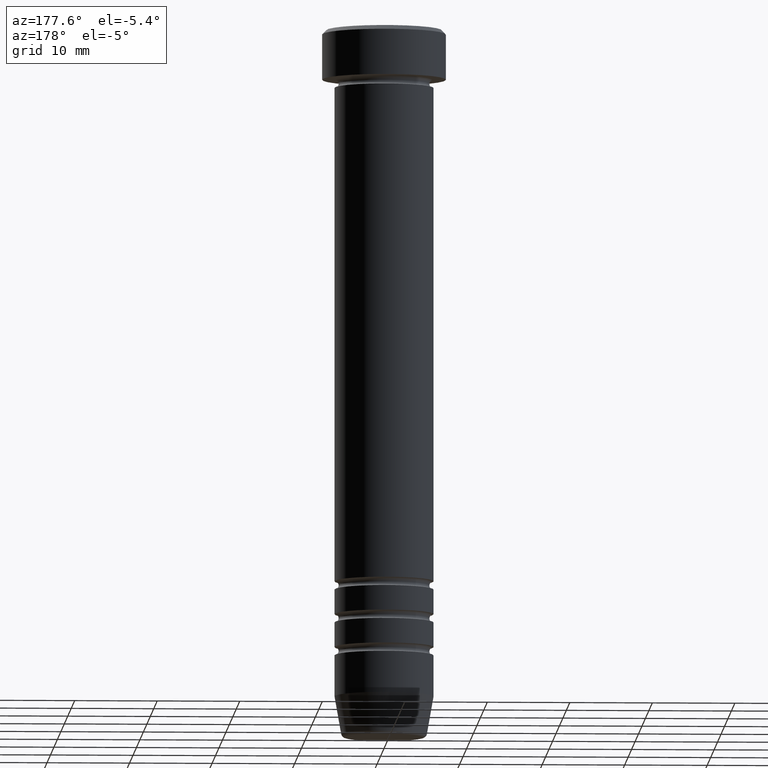
[diagram: clean part render]
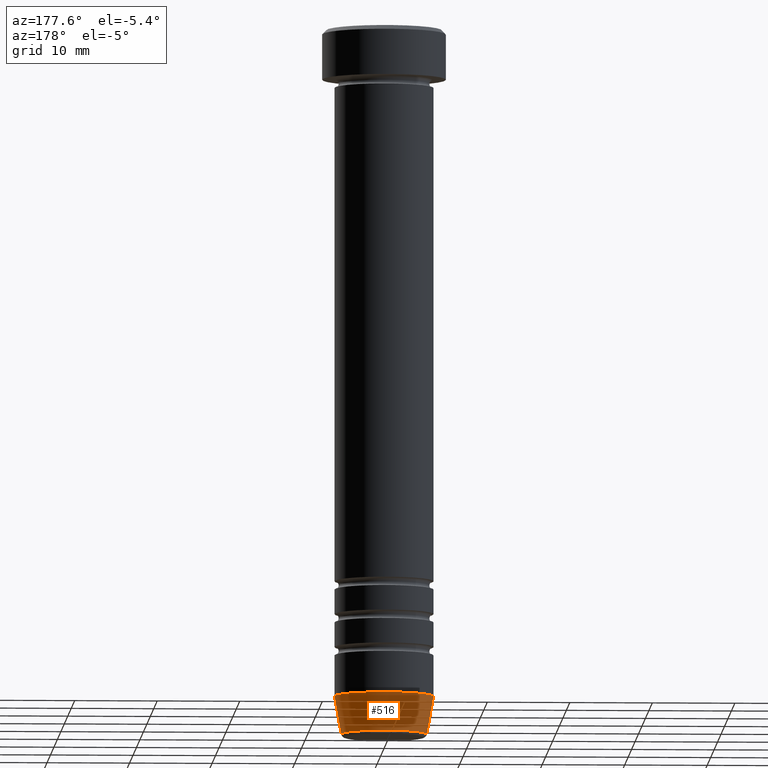
[diagram: same view with one face highlighted and labeled with its STEP entity id]
A machine part, auxiliary view. The second image highlights one B-rep face of the part: STEP entity #516.
In plain terms, the highlighted conical surface has half-angle 10 deg.
Its self-contained STEP definition (entity closure, byte-faithful):
#63 = CARTESIAN_POINT ( 'NONE',  ( 0.000000000000000000, 0.000000000000000000, -86.00000000000000000 ) ) ;
#69 = DIRECTION ( 'NONE',  ( 1.000000000000000000, 0.000000000000000000, 0.000000000000000000 ) ) ;
#94 = ORIENTED_EDGE ( 'NONE', *, *, #417, .F. ) ;
#98 = ORIENTED_EDGE ( 'NONE', *, *, #1123, .F. ) ;
#124 = LINE ( 'NONE', #541, #404 ) ;
#132 = AXIS2_PLACEMENT_3D ( 'NONE', #373, #674, #210 ) ;
#149 = VECTOR ( 'NONE', #673, 999.9999999999998863 ) ;
#210 = DIRECTION ( 'NONE',  ( 1.000000000000000000, 0.000000000000000000, 0.000000000000000000 ) ) ;
#252 = VERTEX_POINT ( 'NONE', #285 ) ;
#259 = CARTESIAN_POINT ( 'NONE',  ( 5.191219157375140725, 0.000000000000000000, -85.58682408883348103 ) ) ;
#271 = CARTESIAN_POINT ( 'NONE',  ( 0.000000000000000000, 0.000000000000000000, -85.58682408883348103 ) ) ;
#285 = CARTESIAN_POINT ( 'NONE',  ( 6.000000000000002665, 0.000000000000000000, -81.00000000000000000 ) ) ;
#345 = EDGE_CURVE ( 'NONE', #530, #652, #124, .T. ) ;
#373 = CARTESIAN_POINT ( 'NONE',  ( 0.000000000000000000, 0.000000000000000000, -81.00000000000000000 ) ) ;
#404 = VECTOR ( 'NONE', #743, 999.9999999999998863 ) ;
#417 = EDGE_CURVE ( 'NONE', #252, #652, #421, .T. ) ;
#421 = CIRCLE ( 'NONE', #132, 6.000000000000002665 ) ;
#445 = DIRECTION ( 'NONE',  ( -1.000000000000000000, 0.000000000000000000, 0.000000000000000000 ) ) ;
#516 = ADVANCED_FACE ( 'NONE', ( #862 ), #1027, .T. ) ;
#530 = VERTEX_POINT ( 'NONE', #971 ) ;
#541 = CARTESIAN_POINT ( 'NONE',  ( -5.118365096457675456, 6.268189432244426128E-16, -86.00000000000000000 ) ) ;
#603 = DIRECTION ( 'NONE',  ( -0.000000000000000000, -0.000000000000000000, 1.000000000000000000 ) ) ;
#609 = EDGE_LOOP ( 'NONE', ( #1064, #784, #94, #98 ) ) ;
#652 = VERTEX_POINT ( 'NONE', #1142 ) ;
#673 = DIRECTION ( 'NONE',  ( 0.1736481776669306087, 0.000000000000000000, 0.9848077530122081313 ) ) ;
#674 = DIRECTION ( 'NONE',  ( -0.000000000000000000, -0.000000000000000000, 1.000000000000000000 ) ) ;
#716 = CIRCLE ( 'NONE', #947, 5.191219157375140725 ) ;
#743 = DIRECTION ( 'NONE',  ( -0.1736481776669306087, 2.126576849575774688E-17, 0.9848077530122081313 ) ) ;
#746 = LINE ( 'NONE', #1105, #149 ) ;
#755 = AXIS2_PLACEMENT_3D ( 'NONE', #63, #603, #69 ) ;
#784 = ORIENTED_EDGE ( 'NONE', *, *, #345, .T. ) ;
#862 = FACE_OUTER_BOUND ( 'NONE', #609, .T. ) ;
#868 = VERTEX_POINT ( 'NONE', #259 ) ;
#903 = EDGE_CURVE ( 'NONE', #868, #530, #716, .T. ) ;
#947 = AXIS2_PLACEMENT_3D ( 'NONE', #271, #984, #445 ) ;
#971 = CARTESIAN_POINT ( 'NONE',  ( -5.191219157375140725, 6.852645359818004938E-16, -85.58682408883348103 ) ) ;
#984 = DIRECTION ( 'NONE',  ( -0.000000000000000000, -0.000000000000000000, 1.000000000000000000 ) ) ;
#1027 = CONICAL_SURFACE ( 'NONE', #755, 5.118365096457675456, 0.1745329251994331976 ) ;
#1064 = ORIENTED_EDGE ( 'NONE', *, *, #903, .T. ) ;
#1105 = CARTESIAN_POINT ( 'NONE',  ( 5.118365096457675456, 0.000000000000000000, -86.00000000000000000 ) ) ;
#1123 = EDGE_CURVE ( 'NONE', #868, #252, #746, .T. ) ;
#1142 = CARTESIAN_POINT ( 'NONE',  ( -6.000000000000002665, 7.347880794884122694E-16, -81.00000000000000000 ) ) ;